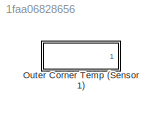
MODEL slx_1faa06828656
KIND model
CONFIG AbsTol = auto
CONFIG FixedStep = auto
CONFIG MaxStep = auto
CONFIG MinStep = auto
CONFIG RelTol = 1e-3
CONFIG SampleTimeConstraint = Unconstrained
CONFIG Solver = ode45
CONFIG SolverMode = Auto
CONFIG SolverName = ode45
CONFIG StartTime = 0.0
CONFIG StopTime = 10.0
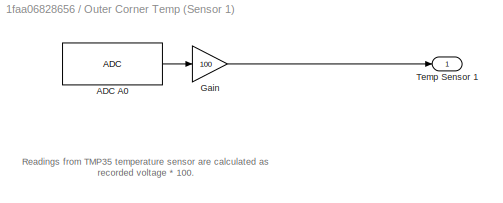
BLOCK [SubSystem] Outer Corner Temp (Sensor 1)
  Ports = [0, 1]
  RequestExecContextInheritance = off
BLOCK [Reference] Outer Corner Temp (Sensor 1)/ADC A0  REF=EEE481Arduino/ADC
  Ports = [0, 1]
  SourceBlock = EEE481Arduino/ADC
  Tsa = 0.1
  pinNum = 0
BLOCK [Gain] Outer Corner Temp (Sensor 1)/Gain
  Gain = 100
  OutDataTypeStr = Inherit: Inherit via internal rule
  ParamDataTypeStr = Inherit: Inherit via internal rule
  SaturateOnIntegerOverflow = off
BLOCK [Outport] Outer Corner Temp (Sensor 1)/Temp Sensor 1
  IconDisplay = Port number
ANNOTATION Outer Corner Temp (Sensor 1): Readings from TMP35 temperature sensor are calculated as recorded voltage * 100.
LINE Outer Corner Temp (Sensor 1)/ADC A0:1 -> Outer Corner Temp (Sensor 1)/Gain:1
LINE Outer Corner Temp (Sensor 1)/Gain:1 -> Outer Corner Temp (Sensor 1)/Temp Sensor 1:1
